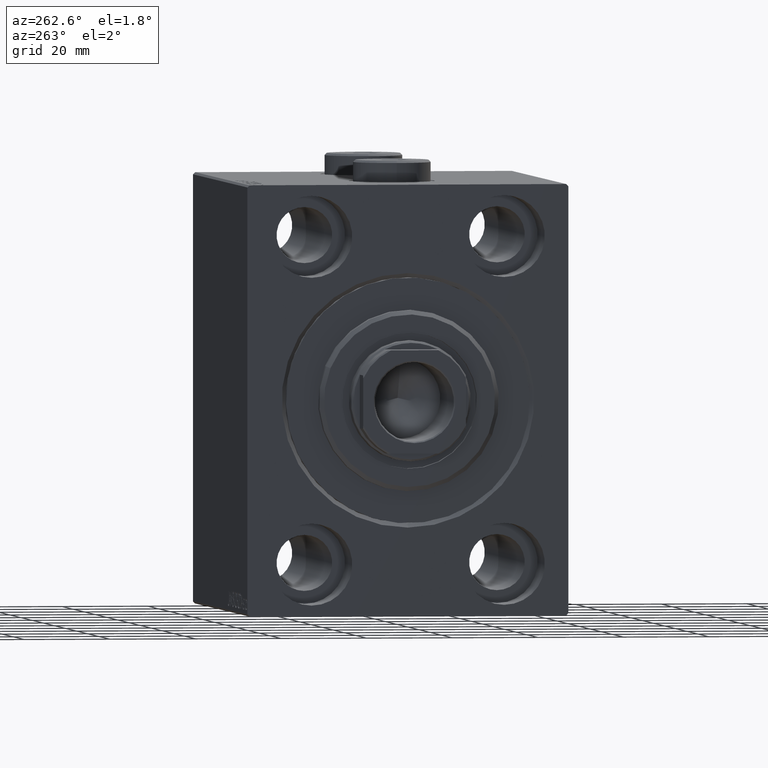
[diagram: clean part render]
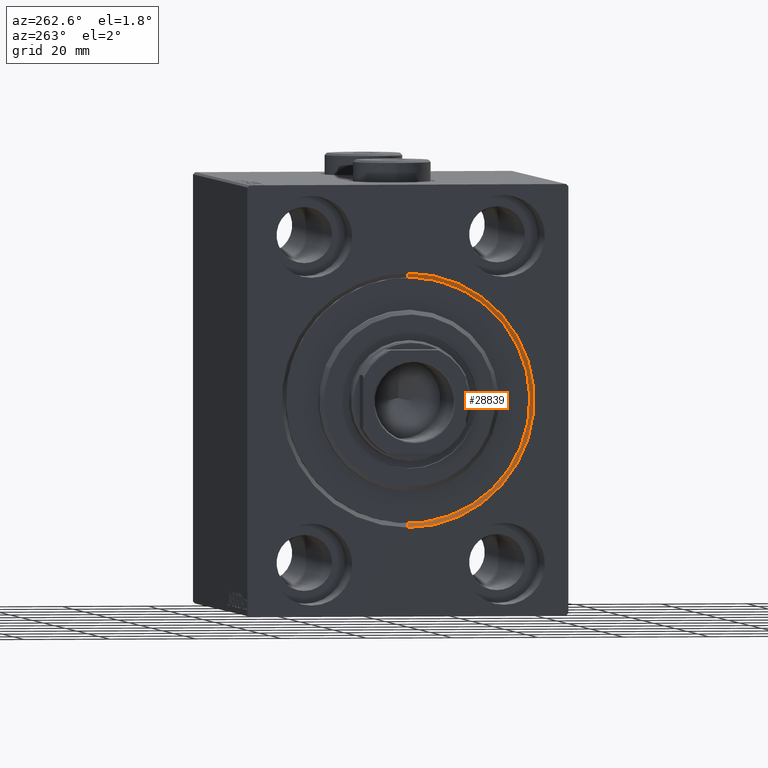
[diagram: same view with one face highlighted and labeled with its STEP entity id]
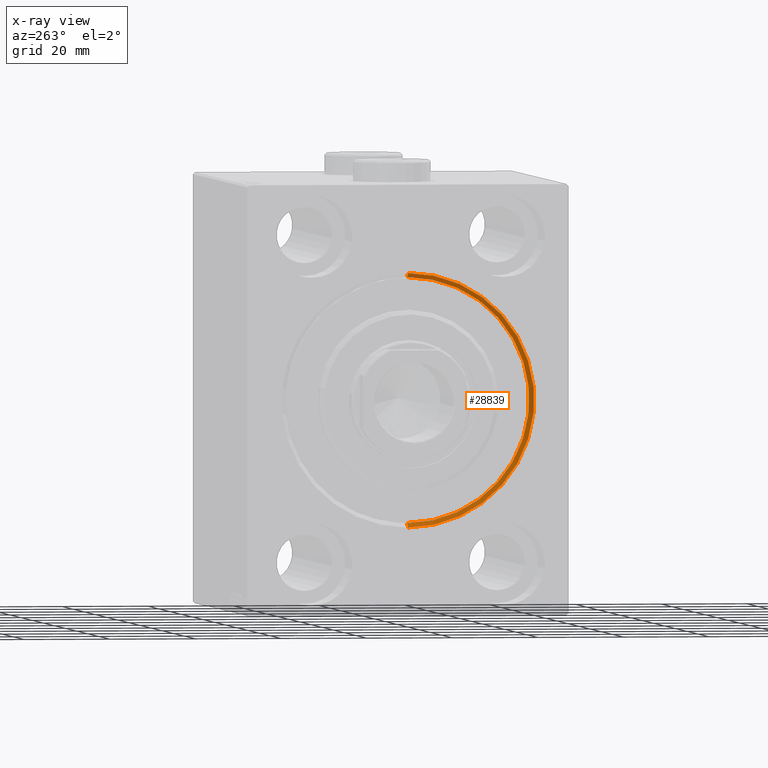
[diagram: x-ray of the same camera — body ghosted, the highlighted face saturated]
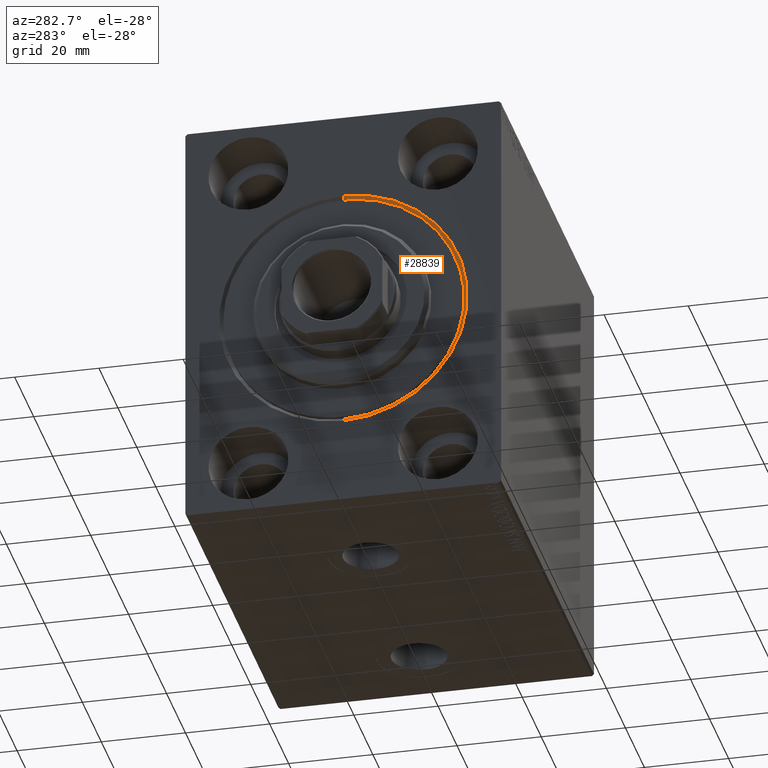
[diagram: same view with one face highlighted and labeled with its STEP entity id]
A machine part, auxiliary view. The second image highlights one B-rep face of the part: STEP entity #28839.
The next image is the same camera in x-ray: the body ghosted, the highlighted face saturated — about 0% of this face is hidden behind the body in this view.
A second angle (auxiliary view) of the same face is appended — the face is thin or edge-on in the first view.
In plain terms, the highlighted conical surface has half-angle 45 deg.
Its self-contained STEP definition (entity closure, byte-faithful):
#680 = AXIS2_PLACEMENT_3D ( 'NONE', #3313, #34484, #26938 ) ;
#771 = EDGE_CURVE ( 'NONE', #37662, #29178, #7894, .T. ) ;
#2413 = CARTESIAN_POINT ( 'NONE',  ( 1.000000000000018208, 0.000000000000000000, 28.50000000000000000 ) ) ;
#3313 = CARTESIAN_POINT ( 'NONE',  ( 1.000000000000018208, 0.000000000000000000, 0.000000000000000000 ) ) ;
#5848 = CARTESIAN_POINT ( 'NONE',  ( 0.000000000000000000, 0.000000000000000000, 29.50000000000001421 ) ) ;
#7894 = LINE ( 'NONE', #8579, #35617 ) ;
#7939 = CARTESIAN_POINT ( 'NONE',  ( 0.000000000000000000, 0.000000000000000000, 0.000000000000000000 ) ) ;
#8505 = CARTESIAN_POINT ( 'NONE',  ( 1.000000000000018208, 3.490243377569956456E-15, -28.50000000000000000 ) ) ;
#8522 = DIRECTION ( 'NONE',  ( 0.000000000000000000, 0.000000000000000000, -1.000000000000000000 ) ) ;
#8579 = CARTESIAN_POINT ( 'NONE',  ( 1.000000000000018208, 0.000000000000000000, 28.50000000000000000 ) ) ;
#9604 = EDGE_LOOP ( 'NONE', ( #23341, #29666, #35447, #18511 ) ) ;
#10844 = CIRCLE ( 'NONE', #40900, 28.50000000000000000 ) ;
#13379 = VERTEX_POINT ( 'NONE', #27658 ) ;
#14627 = DIRECTION ( 'NONE',  ( 0.000000000000000000, 0.000000000000000000, -1.000000000000000000 ) ) ;
#15182 = LINE ( 'NONE', #8505, #44402 ) ;
#15197 = CARTESIAN_POINT ( 'NONE',  ( 1.000000000000018208, 0.000000000000000000, 0.000000000000000000 ) ) ;
#15247 = FACE_OUTER_BOUND ( 'NONE', #9604, .T. ) ;
#16968 = EDGE_CURVE ( 'NONE', #13379, #35478, #15182, .T. ) ;
#17569 = DIRECTION ( 'NONE',  ( -0.7071067811865487940, 8.659560562354919300E-17, -0.7071067811865463515 ) ) ;
#18511 = ORIENTED_EDGE ( 'NONE', *, *, #771, .F. ) ;
#18515 = CARTESIAN_POINT ( 'NONE',  ( 0.000000000000000000, 3.612708057484693970E-15, -29.50000000000001421 ) ) ;
#20460 = CONICAL_SURFACE ( 'NONE', #680, 28.50000000000000000, 0.7853981633974466137 ) ;
#22051 = EDGE_CURVE ( 'NONE', #13379, #37662, #10844, .T. ) ;
#23341 = ORIENTED_EDGE ( 'NONE', *, *, #22051, .F. ) ;
#24501 = DIRECTION ( 'NONE',  ( 1.000000000000000000, 0.000000000000000000, 0.000000000000000000 ) ) ;
#26938 = DIRECTION ( 'NONE',  ( 0.000000000000000000, 0.000000000000000000, 1.000000000000000000 ) ) ;
#27658 = CARTESIAN_POINT ( 'NONE',  ( 1.000000000000018208, 3.490243377569956456E-15, -28.50000000000000000 ) ) ;
#28839 = ADVANCED_FACE ( 'NONE', ( #15247 ), #20460, .F. ) ;
#29178 = VERTEX_POINT ( 'NONE', #5848 ) ;
#29454 = DIRECTION ( 'NONE',  ( -0.7071067811865487940, 0.000000000000000000, 0.7071067811865463515 ) ) ;
#29666 = ORIENTED_EDGE ( 'NONE', *, *, #16968, .T. ) ;
#30122 = AXIS2_PLACEMENT_3D ( 'NONE', #7939, #24501, #14627 ) ;
#34484 = DIRECTION ( 'NONE',  ( -1.000000000000000000, 0.000000000000000000, 0.000000000000000000 ) ) ;
#35441 = EDGE_CURVE ( 'NONE', #29178, #35478, #36692, .T. ) ;
#35447 = ORIENTED_EDGE ( 'NONE', *, *, #35441, .F. ) ;
#35478 = VERTEX_POINT ( 'NONE', #18515 ) ;
#35617 = VECTOR ( 'NONE', #29454, 1000.000000000000000 ) ;
#36692 = CIRCLE ( 'NONE', #30122, 29.50000000000001421 ) ;
#37201 = DIRECTION ( 'NONE',  ( -1.000000000000000000, 0.000000000000000000, 0.000000000000000000 ) ) ;
#37662 = VERTEX_POINT ( 'NONE', #2413 ) ;
#40900 = AXIS2_PLACEMENT_3D ( 'NONE', #15197, #37201, #8522 ) ;
#44402 = VECTOR ( 'NONE', #17569, 1000.000000000000000 ) ;